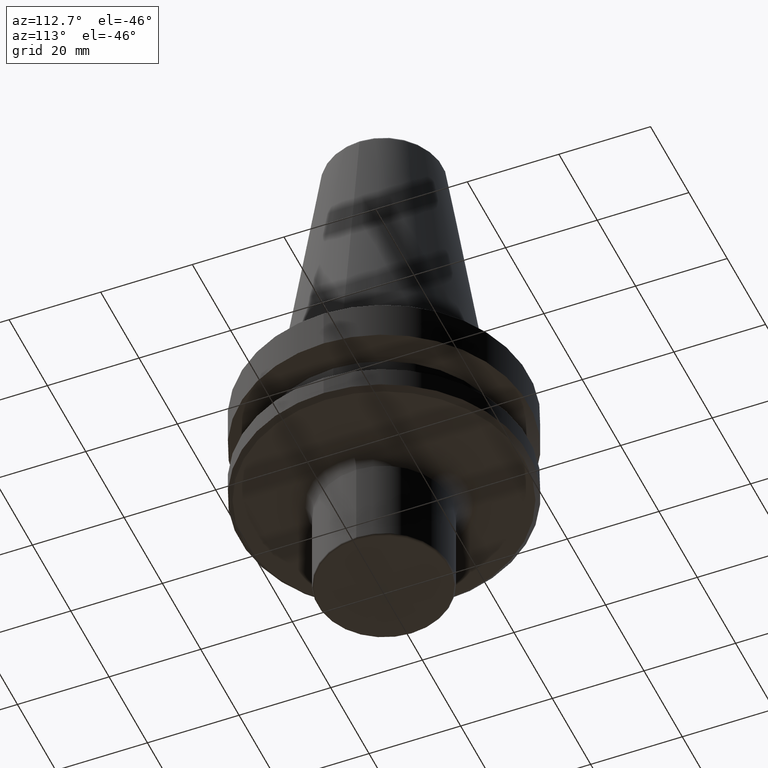
[diagram: clean part render]
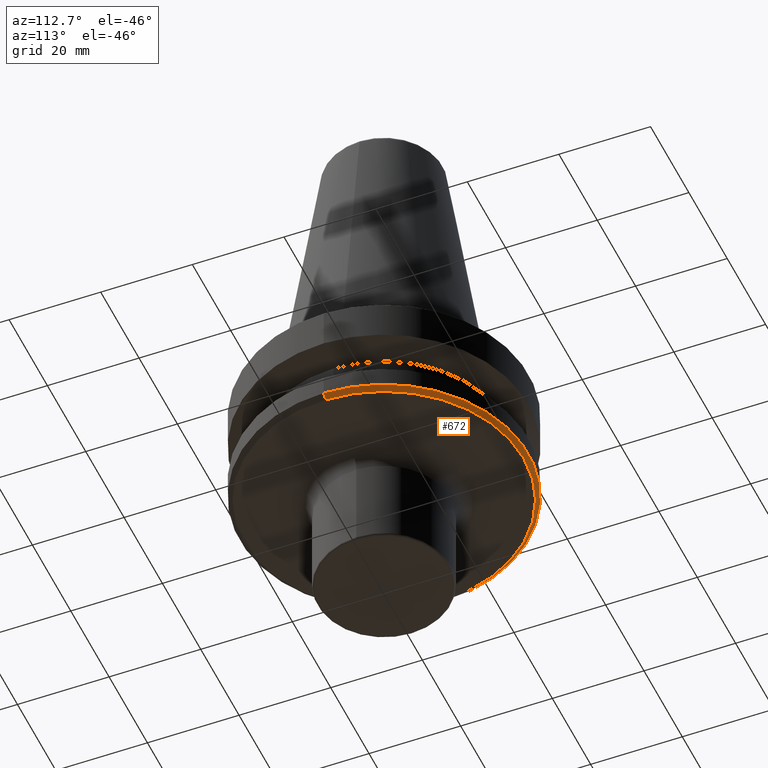
[diagram: same view with one face highlighted and labeled with its STEP entity id]
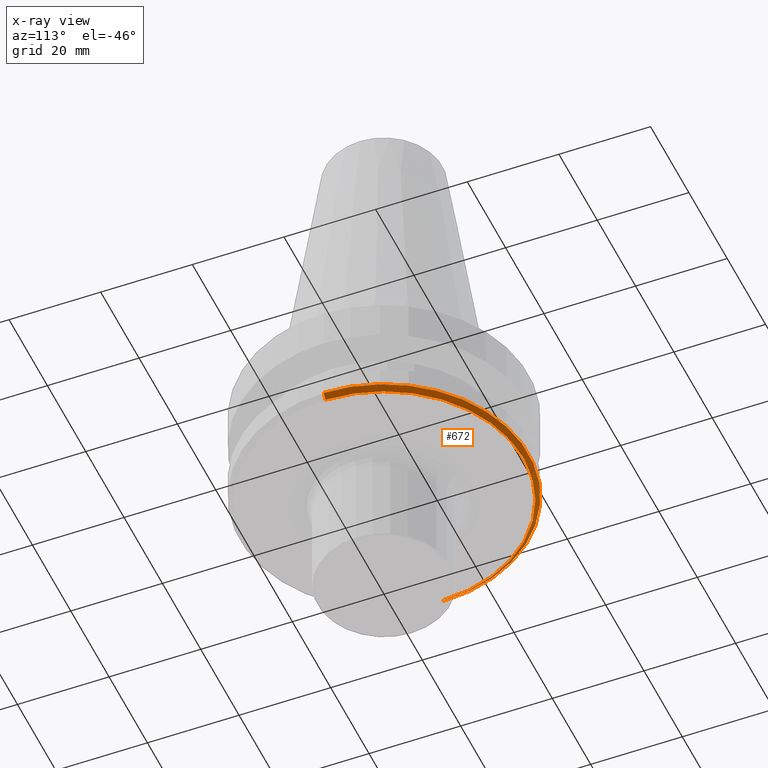
[diagram: x-ray of the same camera — body ghosted, the highlighted face saturated]
A machine part, auxiliary view. The second image highlights one B-rep face of the part: STEP entity #672.
The next image is the same camera in x-ray: the body ghosted, the highlighted face saturated — about 0% of this face is hidden behind the body in this view.
In plain terms, the highlighted conical surface has half-angle 45 deg.
Its self-contained STEP definition (entity closure, byte-faithful):
#22 = ORIENTED_EDGE ( 'NONE', *, *, #190, .F. ) ;
#58 = CARTESIAN_POINT ( 'NONE',  ( 31.50000000000008500, 0.0000000000000000000, -91.40000000000037500 ) ) ;
#71 = VERTEX_POINT ( 'NONE', #798 ) ;
#146 = VECTOR ( 'NONE', #318, 1000.000000000000000 ) ;
#163 = EDGE_CURVE ( 'NONE', #828, #883, #837, .T. ) ;
#190 = EDGE_CURVE ( 'NONE', #883, #324, #303, .T. ) ;
#199 = AXIS2_PLACEMENT_3D ( 'NONE', #1027, #536, #678 ) ;
#204 = CARTESIAN_POINT ( 'NONE',  ( 0.0000000000000000000, 0.0000000000000000000, -92.40000000000803500 ) ) ;
#250 = CIRCLE ( 'NONE', #283, 30.49999999999241900 ) ;
#254 = ORIENTED_EDGE ( 'NONE', *, *, #447, .T. ) ;
#278 = VECTOR ( 'NONE', #449, 1000.000000000000000 ) ;
#283 = AXIS2_PLACEMENT_3D ( 'NONE', #204, #831, #1006 ) ;
#303 = CIRCLE ( 'NONE', #199, 31.50000000000008500 ) ;
#305 = DIRECTION ( 'NONE',  ( 1.000000000000000000, 0.0000000000000000000, 0.0000000000000000000 ) ) ;
#318 = DIRECTION ( 'NONE',  ( 0.7071067811865487900, 0.0000000000000000000, 0.7071067811865463500 ) ) ;
#321 = ORIENTED_EDGE ( 'NONE', *, *, #401, .T. ) ;
#324 = VERTEX_POINT ( 'NONE', #645 ) ;
#401 = EDGE_CURVE ( 'NONE', #71, #324, #701, .T. ) ;
#438 = CARTESIAN_POINT ( 'NONE',  ( -31.50000000000008500, 3.857637417314172900E-015, -91.40000000000037500 ) ) ;
#447 = EDGE_CURVE ( 'NONE', #828, #71, #250, .T. ) ;
#449 = DIRECTION ( 'NONE',  ( -0.7071067811865487900, 8.659560562354948900E-017, 0.7071067811865463500 ) ) ;
#471 = CARTESIAN_POINT ( 'NONE',  ( 30.49999999999241900, 0.0000000000000000000, -92.40000000000803500 ) ) ;
#536 = DIRECTION ( 'NONE',  ( -0.0000000000000000000, -0.0000000000000000000, 1.000000000000000000 ) ) ;
#626 = CARTESIAN_POINT ( 'NONE',  ( 0.0000000000000000000, 0.0000000000000000000, -91.40000000000037500 ) ) ;
#633 = EDGE_LOOP ( 'NONE', ( #254, #321, #22, #915 ) ) ;
#645 = CARTESIAN_POINT ( 'NONE',  ( -31.50000000000008500, 3.857637417314172900E-015, -91.40000000000037500 ) ) ;
#672 = ADVANCED_FACE ( 'NONE', ( #932 ), #687, .T. ) ;
#678 = DIRECTION ( 'NONE',  ( 1.000000000000000000, 0.0000000000000000000, 0.0000000000000000000 ) ) ;
#687 = CONICAL_SURFACE ( 'NONE', #981, 31.50000000000008500, 0.7853981633974500600 ) ;
#701 = LINE ( 'NONE', #438, #278 ) ;
#798 = CARTESIAN_POINT ( 'NONE',  ( -30.49999999999241900, 3.796405077356336000E-015, -92.40000000000803500 ) ) ;
#828 = VERTEX_POINT ( 'NONE', #471 ) ;
#831 = DIRECTION ( 'NONE',  ( -0.0000000000000000000, -0.0000000000000000000, 1.000000000000000000 ) ) ;
#837 = LINE ( 'NONE', #979, #146 ) ;
#868 = DIRECTION ( 'NONE',  ( -0.0000000000000000000, -0.0000000000000000000, 1.000000000000000000 ) ) ;
#883 = VERTEX_POINT ( 'NONE', #58 ) ;
#915 = ORIENTED_EDGE ( 'NONE', *, *, #163, .F. ) ;
#932 = FACE_OUTER_BOUND ( 'NONE', #633, .T. ) ;
#979 = CARTESIAN_POINT ( 'NONE',  ( 31.50000000000008500, 0.0000000000000000000, -91.40000000000037500 ) ) ;
#981 = AXIS2_PLACEMENT_3D ( 'NONE', #626, #868, #305 ) ;
#1006 = DIRECTION ( 'NONE',  ( 1.000000000000000000, 0.0000000000000000000, 0.0000000000000000000 ) ) ;
#1027 = CARTESIAN_POINT ( 'NONE',  ( 0.0000000000000000000, 0.0000000000000000000, -91.40000000000037500 ) ) ;